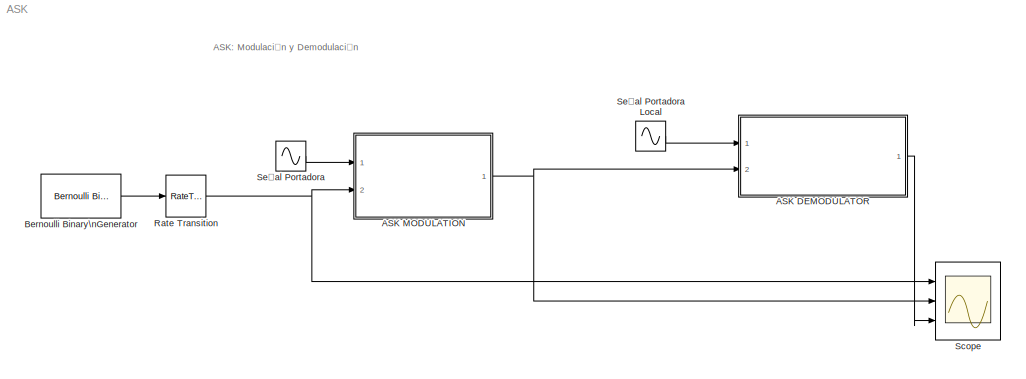
MODEL ASK
KIND model
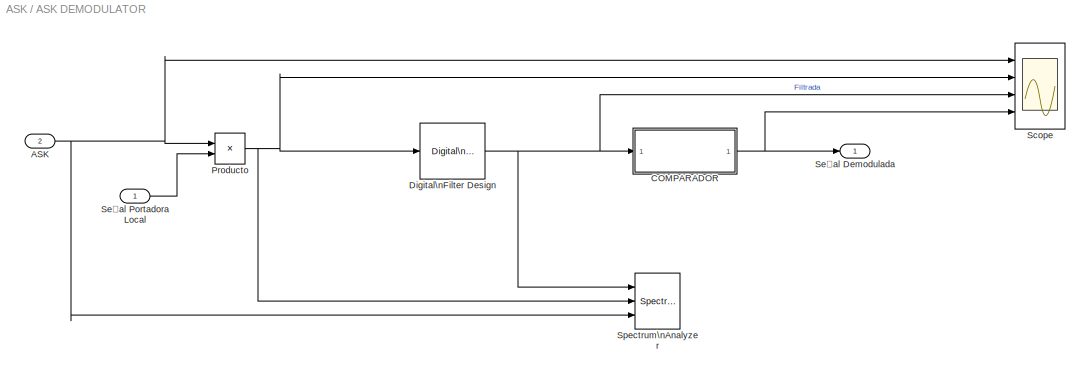
BLOCK [SubSystem] ASK DEMODULATOR
  Ports = [2, 1]
  RequestExecContextInheritance = off
  SID = 16
  Variant = off
BLOCK [Inport] ASK DEMODULATOR/ASK
  IconDisplay = Port number
  Port = 2
  SID = 17
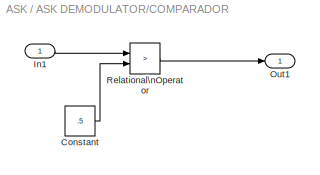
BLOCK [SubSystem] ASK DEMODULATOR/COMPARADOR
  Ports = [1, 1]
  RequestExecContextInheritance = off
  SID = 18
  Variant = off
BLOCK [Constant] ASK DEMODULATOR/COMPARADOR/Constant
  SID = 20
  Value = .5
BLOCK [Inport] ASK DEMODULATOR/COMPARADOR/In1
  IconDisplay = Port number
  SID = 19
BLOCK [Outport] ASK DEMODULATOR/COMPARADOR/Out1
  IconDisplay = Port number
  SID = 22
BLOCK [RelationalOperator] ASK DEMODULATOR/COMPARADOR/Relational\nOperator
  InputSameDT = off
  Operator = >
  OutDataTypeStr = boolean
  Ports = [2, 1]
  SID = 21
BLOCK [Reference] ASK DEMODULATOR/Digital\nFilter Design  REF=dsparch4/Digital\nFilter Design
  Ports = [1, 1]
  SID = 23
  SourceBlock = dsparch4/Digital\nFilter Design
  SourceProductBaseCode = DS
  SourceProductName = DSP System Toolbox
  SourceType = Digital Filter Design
  UserData = DataTag0
  UserDataPersistent = on
  mwdsp_browser_bugfix_var = off
BLOCK [Product] ASK DEMODULATOR/Producto
  InputSameDT = off
  OutDataTypeStr = Inherit: Inherit via internal rule
  Ports = [2, 1]
  SID = 24
  SaturateOnIntegerOverflow = off
BLOCK [Scope] ASK DEMODULATOR/Scope
  NumInputPorts = 4
  Ports = [4]
  SID = 25
  ScopeSpecificationString = Simulink.scopes.TimeScopeBlockCfg('CurrentConfiguration', extmgr.ConfigurationSet(extmgr.Configuration('Core','General UI',true),extmgr.Configuration('Core','Source UI',true),extmgr.Configuration('Sources','WiredSimulink',true,'DataLoggingSaveFormat','StructureWithTime','DataLoggingDecimation','1','DataLoggingDecimateData',true),extmgr.Configuration('Visuals','Time Domain',true,'SerializedDisplays...<+3593ch>
BLOCK [Outport] ASK DEMODULATOR/Señal Demodulada
  IconDisplay = Port number
  SID = 27
BLOCK [Inport] ASK DEMODULATOR/Señal Portadora Local
  IconDisplay = Port number
  SID = 55
BLOCK [SpectrumAnalyzer] ASK DEMODULATOR/Spectrum\nAnalyzer
  NumInputPorts = 3
  Ports = [3]
  SID = 48
  ScopeSpecificationString = spbscopes.SpectrumAnalyzerBlockCfg('CurrentConfiguration', extmgr.ConfigurationSet(extmgr.Configuration('Core','General UI',true),extmgr.Configuration('Core','Source UI',true),extmgr.Configuration('Sources','WiredSimulink',true),extmgr.Configuration('Sources','SimulinkEvent',false),extmgr.Configuration('Sources','Simulink',false),extmgr.Configuration('Sources','File',false),extmgr.Configuration('S...<+3590ch>
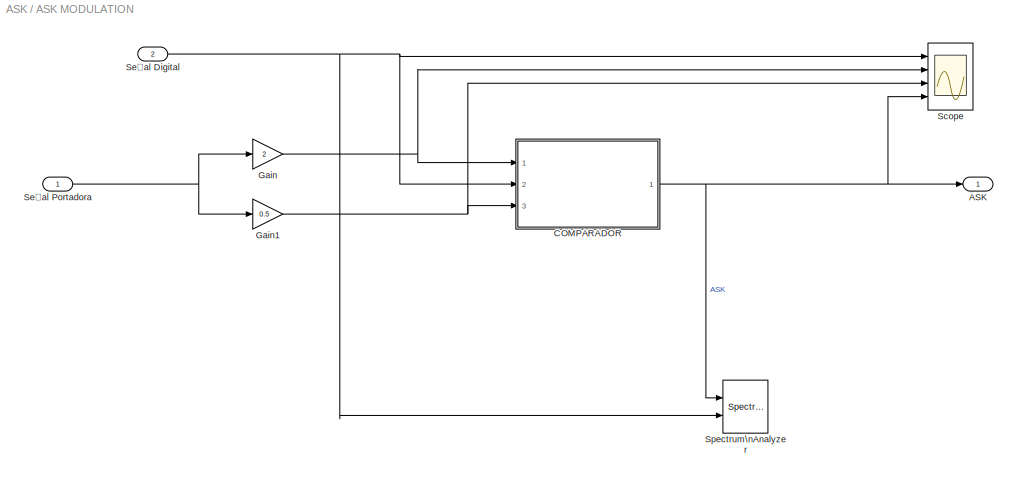
BLOCK [SubSystem] ASK MODULATION
  Ports = [2, 1]
  RequestExecContextInheritance = off
  SID = 1
  Variant = off
BLOCK [Outport] ASK MODULATION/ASK
  IconDisplay = Port number
  SID = 13
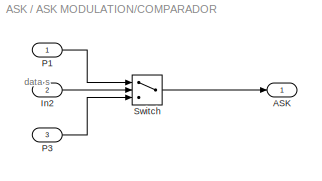
BLOCK [SubSystem] ASK MODULATION/COMPARADOR
  Ports = [3, 1]
  RequestExecContextInheritance = off
  SID = 6
  Variant = off
BLOCK [Outport] ASK MODULATION/COMPARADOR/ASK
  IconDisplay = Port number
  SID = 11
BLOCK [Inport] ASK MODULATION/COMPARADOR/In2
  IconDisplay = Port number
  Port = 2
  SID = 8
BLOCK [Inport] ASK MODULATION/COMPARADOR/P1
  IconDisplay = Port number
  SID = 7
BLOCK [Inport] ASK MODULATION/COMPARADOR/P3
  IconDisplay = Port number
  Port = 3
  SID = 9
BLOCK [Switch] ASK MODULATION/COMPARADOR/Switch
  InputSameDT = off
  SID = 10
  SaturateOnIntegerOverflow = off
  Threshold = 0.5
BLOCK [Gain] ASK MODULATION/Gain
  Gain = 2
  OutDataTypeStr = Inherit: Inherit via internal rule
  ParamDataTypeStr = Inherit: Inherit via internal rule
  SID = 53
  SaturateOnIntegerOverflow = off
BLOCK [Gain] ASK MODULATION/Gain1
  Gain = 0.5
  OutDataTypeStr = Inherit: Inherit via internal rule
  ParamDataTypeStr = Inherit: Inherit via internal rule
  SID = 54
  SaturateOnIntegerOverflow = off
BLOCK [Scope] ASK MODULATION/Scope
  NumInputPorts = 4
  Ports = [4]
  SID = 3
  ScopeSpecificationString = Simulink.scopes.TimeScopeBlockCfg('CurrentConfiguration', extmgr.ConfigurationSet(extmgr.Configuration('Core','General UI',true),extmgr.Configuration('Core','Source UI',true),extmgr.Configuration('Sources','WiredSimulink',true,'DataLoggingVariableName','ScopeData2','DataLoggingSaveFormat','StructureWithTime','DataLoggingDecimation','1','DataLoggingDecimateData',true),extmgr.Configuration('Visuals'...<+3626ch>
BLOCK [Inport] ASK MODULATION/Señal Digital
  IconDisplay = Port number
  Port = 2
  SID = 2
BLOCK [Inport] ASK MODULATION/Señal Portadora
  IconDisplay = Port number
  SID = 50
BLOCK [SpectrumAnalyzer] ASK MODULATION/Spectrum\nAnalyzer
  NumInputPorts = 2
  Ports = [2]
  SID = 39
  ScopeSpecificationString = spbscopes.SpectrumAnalyzerBlockCfg('CurrentConfiguration', extmgr.ConfigurationSet(extmgr.Configuration('Core','General UI',true),extmgr.Configuration('Core','Source UI',true),extmgr.Configuration('Sources','WiredSimulink',true),extmgr.Configuration('Sources','SimulinkEvent',false),extmgr.Configuration('Sources','Simulink',false),extmgr.Configuration('Sources','File',false),extmgr.Configuration('S...<+3558ch>
BLOCK [Reference] Bernoulli Binary\nGenerator  REF=commrandsrc2/Bernoulli Binary\nGenerator
  P = 0.4
  Ports = [0, 1]
  SID = 14
  SourceBlock = commrandsrc2/Bernoulli Binary\nGenerator
  SourceType = Bernoulli Binary Generator
  Ts = 5
  frameBased = off
  orient = on
  outDataType = double
  sampPerFrame = 1
  seed = 81
BLOCK [RateTransition] Rate Transition
  OutPortSampleTime = 1/2000
  SID = 44
BLOCK [Scope] Scope
  NumInputPorts = 3
  Ports = [3]
  SID = 15
  ScopeSpecificationString = Simulink.scopes.TimeScopeBlockCfg('CurrentConfiguration', extmgr.ConfigurationSet(extmgr.Configuration('Core','General UI',true),extmgr.Configuration('Core','Source UI',true),extmgr.Configuration('Sources','WiredSimulink',true,'DataLoggingVariableName','ScopeData1','DataLoggingSaveFormat','StructureWithTime','DataLoggingDecimation','1','DataLoggingDecimateData',true),extmgr.Configuration('Visuals'...<+2994ch>
BLOCK [Sin] Señal Portadora
  Frequency = 10*2*pi
  Ports = [0, 1]
  SID = 4
  SampleTime = 1/2000
  Samples = 50
BLOCK [Sin] Señal Portadora Local
  Frequency = 10*2*pi
  Ports = [0, 1]
  SID = 26
  SampleTime = 1/2000
  Samples = 50
ANNOTATION (root): ASK: Modulación y Demodulación
ANNOTATION ASK MODULATION/COMPARADOR: data s
NET ASK DEMODULATOR/ASK:1 -> ASK DEMODULATOR/Producto:1, ASK DEMODULATOR/Scope:1, ASK DEMODULATOR/Spectrum\nAnalyzer:3
LINE ASK DEMODULATOR/COMPARADOR/Constant:1 -> ASK DEMODULATOR/COMPARADOR/Relational\nOperator:2
LINE ASK DEMODULATOR/COMPARADOR/In1:1 -> ASK DEMODULATOR/COMPARADOR/Relational\nOperator:1
LINE ASK DEMODULATOR/COMPARADOR/Relational\nOperator:1 -> ASK DEMODULATOR/COMPARADOR/Out1:1
NET ASK DEMODULATOR/COMPARADOR:1 -> ASK DEMODULATOR/Scope:4, ASK DEMODULATOR/Señal Demodulada:1
NET ASK DEMODULATOR/Digital\nFilter Design:1 -> ASK DEMODULATOR/COMPARADOR:1, ASK DEMODULATOR/Scope:3, ASK DEMODULATOR/Spectrum\nAnalyzer:1
NET ASK DEMODULATOR/Producto:1 -> ASK DEMODULATOR/Digital\nFilter Design:1, ASK DEMODULATOR/Scope:2, ASK DEMODULATOR/Spectrum\nAnalyzer:2
LINE ASK DEMODULATOR/Señal Portadora Local:1 -> ASK DEMODULATOR/Producto:2
LINE ASK DEMODULATOR:1 -> Scope:3
LINE ASK MODULATION/COMPARADOR/In2:1 -> ASK MODULATION/COMPARADOR/Switch:2
LINE ASK MODULATION/COMPARADOR/P1:1 -> ASK MODULATION/COMPARADOR/Switch:1
LINE ASK MODULATION/COMPARADOR/P3:1 -> ASK MODULATION/COMPARADOR/Switch:3
LINE ASK MODULATION/COMPARADOR/Switch:1 -> ASK MODULATION/COMPARADOR/ASK:1
NET ASK MODULATION/COMPARADOR:1 -> ASK MODULATION/ASK:1, ASK MODULATION/Scope:4, ASK MODULATION/Spectrum\nAnalyzer:1
NET ASK MODULATION/Gain1:1 -> ASK MODULATION/COMPARADOR:3, ASK MODULATION/Scope:3
NET ASK MODULATION/Gain:1 -> ASK MODULATION/COMPARADOR:1, ASK MODULATION/Scope:2
NET ASK MODULATION/Señal Digital:1 -> ASK MODULATION/COMPARADOR:2, ASK MODULATION/Scope:1, ASK MODULATION/Spectrum\nAnalyzer:2
NET ASK MODULATION/Señal Portadora:1 -> ASK MODULATION/Gain1:1, ASK MODULATION/Gain:1
NET ASK MODULATION:1 -> ASK DEMODULATOR:2, Scope:2
LINE Bernoulli Binary\nGenerator:1 -> Rate Transition:1
NET Rate Transition:1 -> ASK MODULATION:2, Scope:1
LINE Señal Portadora Local:1 -> ASK DEMODULATOR:1
LINE Señal Portadora:1 -> ASK MODULATION:1
note: NET lines group one-source signal fan-out (src -> all destinations, sorted); 1:1 wires keep LINE
